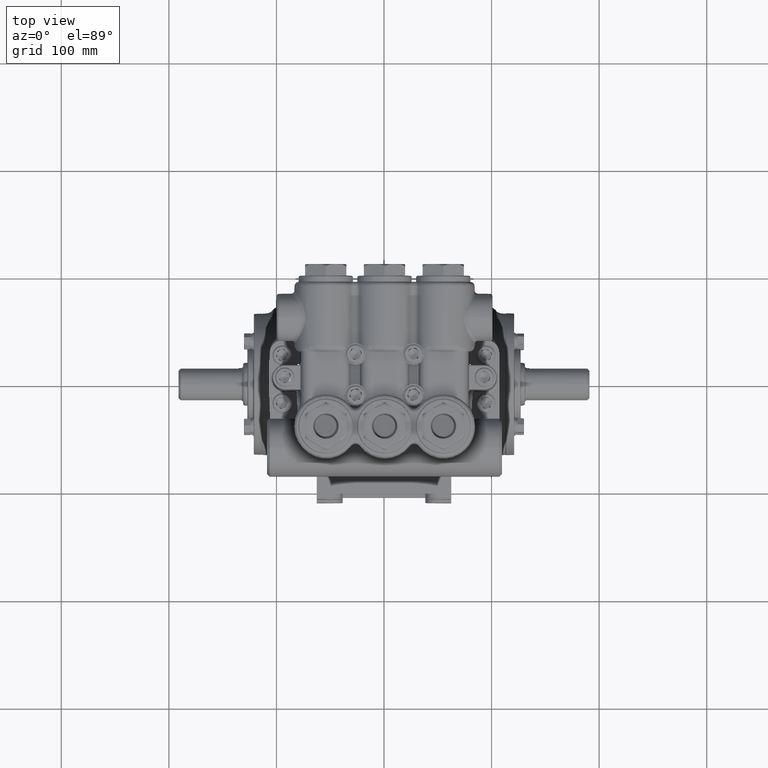
[diagram: clean part render]
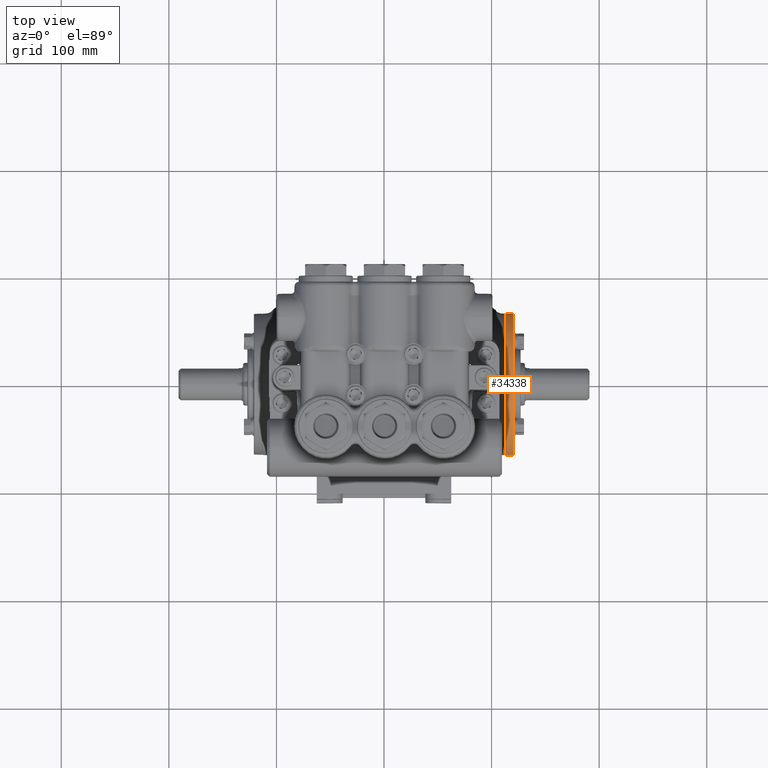
[diagram: same view with one face highlighted and labeled with its STEP entity id]
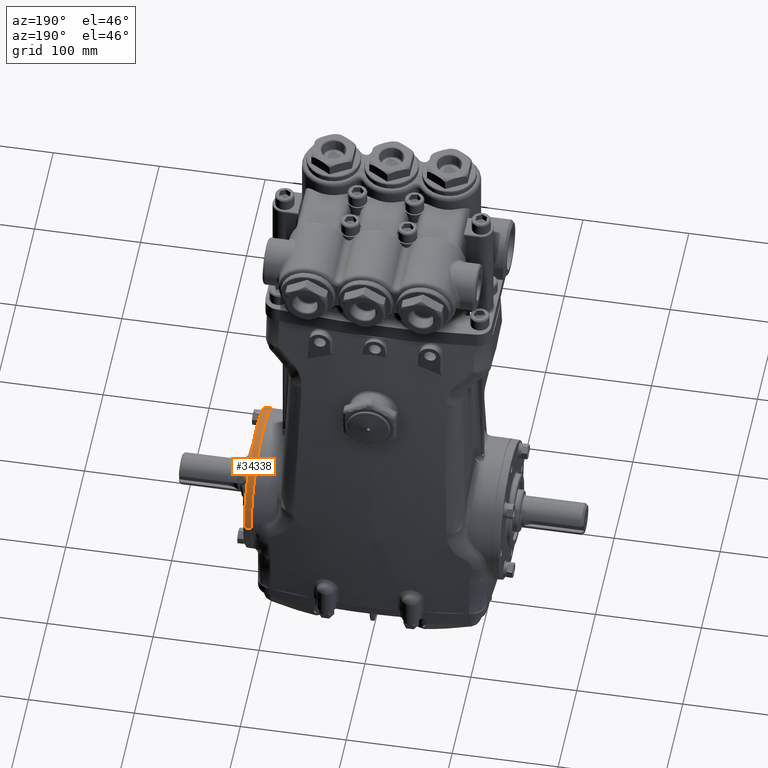
[diagram: same view with one face highlighted and labeled with its STEP entity id]
A machine part, top view. The second image highlights one B-rep face of the part: STEP entity #34338.
A second angle (auxiliary view) of the same face is appended — the face is thin or edge-on in the first view.
In plain terms, the highlighted conical surface has half-angle 2 deg.
Its self-contained STEP definition (entity closure, byte-faithful):
#424 = DIRECTION ( 'NONE',  ( -0.9993908270190959842, -0.03489949670249506419, -4.273955692856433828E-18 ) ) ;
#466 = DIRECTION ( 'NONE',  ( 2.102695122396129669E-16, 1.000000000000000000, 0.000000000000000000 ) ) ;
#2869 = CARTESIAN_POINT ( 'NONE',  ( 4.725783444752074125, -2.588753381743231774, -4.439621628455376673E-17 ) ) ;
#4675 = CONICAL_SURFACE ( 'NONE', #64235, 2.598425196850393970, 0.03490658503988080391 ) ;
#5829 = EDGE_CURVE ( 'NONE', #6868, #85560, #94332, .T. ) ;
#6868 = VERTEX_POINT ( 'NONE', #13288 ) ;
#7466 = CIRCLE ( 'NONE', #41978, 2.588753381743231330 ) ;
#7633 = DIRECTION ( 'NONE',  ( -2.103251201247360165E-16, -1.000000000000000000, 0.000000000000000000 ) ) ;
#7793 = CARTESIAN_POINT ( 'NONE',  ( 4.448818897637795367, -2.598425196850394414, -4.503051064824029420E-17 ) ) ;
#13288 = CARTESIAN_POINT ( 'NONE',  ( 4.725783444752075013, 2.588753381743230886, 2.731847993664263218E-16 ) ) ;
#14729 = DIRECTION ( 'NONE',  ( -1.000000000000000000, 1.224606353822377258E-16, 0.000000000000000000 ) ) ;
#15002 = CARTESIAN_POINT ( 'NONE',  ( 4.468491945413759936, -2.766995180319129614E-16, 2.731847993664263218E-16 ) ) ;
#21419 = DIRECTION ( 'NONE',  ( -2.110550980197792347E-16, -1.000000000000000000, 0.000000000000000000 ) ) ;
#21568 = VERTEX_POINT ( 'NONE', #83414 ) ;
#26073 = EDGE_CURVE ( 'NONE', #58742, #21568, #91266, .T. ) ;
#28280 = EDGE_CURVE ( 'NONE', #85560, #21568, #54271, .T. ) ;
#28780 = CARTESIAN_POINT ( 'NONE',  ( 4.725783444752075013, -3.082075985193306336E-16, 2.731847993664263218E-16 ) ) ;
#30422 = FACE_OUTER_BOUND ( 'NONE', #38388, .T. ) ;
#32340 = AXIS2_PLACEMENT_3D ( 'NONE', #15002, #59672, #7633 ) ;
#34338 = ADVANCED_FACE ( 'NONE', ( #30422 ), #4675, .T. ) ;
#38388 = EDGE_LOOP ( 'NONE', ( #74128, #77360, #80771, #52249 ) ) ;
#41978 = AXIS2_PLACEMENT_3D ( 'NONE', #28780, #88683, #21419 ) ;
#52249 = ORIENTED_EDGE ( 'NONE', *, *, #28280, .T. ) ;
#54271 = CIRCLE ( 'NONE', #32340, 2.597738198883809524 ) ;
#58742 = VERTEX_POINT ( 'NONE', #2869 ) ;
#59672 = DIRECTION ( 'NONE',  ( 1.000000000000000000, -1.224606353822377258E-16, -0.000000000000000000 ) ) ;
#60354 = CARTESIAN_POINT ( 'NONE',  ( 4.448818897637796255, -2.742903441013623481E-16, 2.731847993664263218E-16 ) ) ;
#64235 = AXIS2_PLACEMENT_3D ( 'NONE', #60354, #14729, #466 ) ;
#65802 = CARTESIAN_POINT ( 'NONE',  ( 4.448818897637796255, 2.598425196850393526, 2.731847993664263218E-16 ) ) ;
#65907 = VECTOR ( 'NONE', #87442, 39.37007874015748143 ) ;
#66777 = EDGE_CURVE ( 'NONE', #58742, #6868, #7466, .T. ) ;
#74128 = ORIENTED_EDGE ( 'NONE', *, *, #26073, .F. ) ;
#77360 = ORIENTED_EDGE ( 'NONE', *, *, #66777, .T. ) ;
#80771 = ORIENTED_EDGE ( 'NONE', *, *, #5829, .T. ) ;
#83414 = CARTESIAN_POINT ( 'NONE',  ( 4.468491945413759936, -2.597738198883809524, 2.731847993664263218E-16 ) ) ;
#83909 = CARTESIAN_POINT ( 'NONE',  ( 4.468491945413760824, 2.597738198883807748, -4.494637766216031931E-17 ) ) ;
#85560 = VERTEX_POINT ( 'NONE', #83909 ) ;
#87442 = DIRECTION ( 'NONE',  ( -0.9993908270190959842, 0.03489949670249531399, 0.000000000000000000 ) ) ;
#88683 = DIRECTION ( 'NONE',  ( -1.000000000000000000, 1.224606353822377258E-16, 0.000000000000000000 ) ) ;
#91266 = LINE ( 'NONE', #7793, #91668 ) ;
#91668 = VECTOR ( 'NONE', #424, 39.37007874015748143 ) ;
#94332 = LINE ( 'NONE', #65802, #65907 ) ;